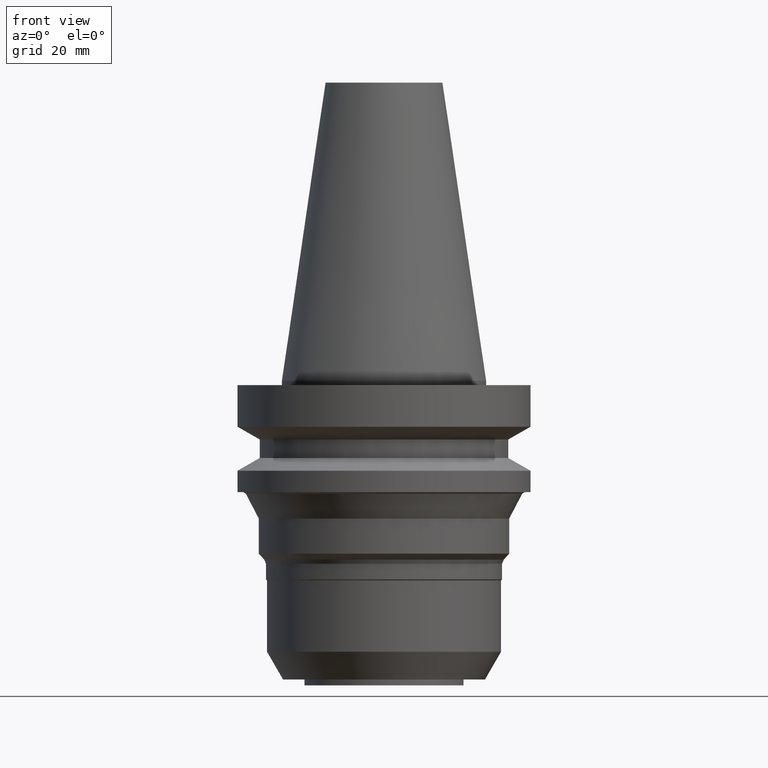
[diagram: clean part render]
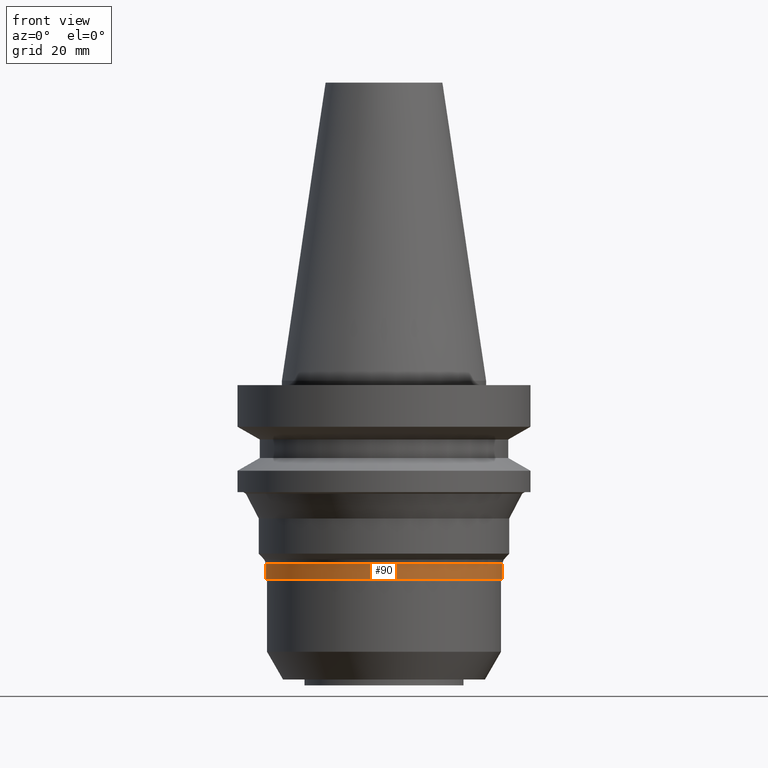
[diagram: same view with one face highlighted and labeled with its STEP entity id]
A machine part, front view. The second image highlights one B-rep face of the part: STEP entity #90.
In plain terms, the highlighted cylindrical surface (bore or boss wall) has radius 40.35 mm, axis along (0, 0, -1).
Its self-contained STEP definition (entity closure, byte-faithful):
#90=ADVANCED_FACE('Unnamed[1]',(#226,#227),#228,.T.);
#127=EDGE_CURVE('Unnamed[1]',#286,#286,#287,.T.);
#158=EDGE_CURVE('Unnamed[1]',#335,#335,#336,.T.);
#226=FACE_BOUND('',#414,.T.);
#227=FACE_BOUND('',#415,.T.);
#228=CYLINDRICAL_SURFACE('',#416,40.3500000000002);
#286=VERTEX_POINT('',#489);
#287=CIRCLE('',#490,40.3500000000003);
#335=VERTEX_POINT('',#551);
#336=CIRCLE('',#552,40.3500000000001);
#414=EDGE_LOOP('',(#625));
#415=EDGE_LOOP('',(#626));
#416=AXIS2_PLACEMENT_3D('',#627,#628,#629);
#489=CARTESIAN_POINT('',(3.82570028970404E-015,40.3500000000003,-62.4784271247455));
#490=AXIS2_PLACEMENT_3D('',#693,#694,#695);
#551=CARTESIAN_POINT('',(4.15155264910952E-015,40.3500000000001,-67.7999999999999));
#552=AXIS2_PLACEMENT_3D('',#747,#748,#749);
#625=ORIENTED_EDGE('',*,*,#158,.F.);
#626=ORIENTED_EDGE('',*,*,#127,.T.);
#627=CARTESIAN_POINT('',(3.98862646940678E-015,7.97725293881356E-015,-65.1392135623727));
#628=DIRECTION('',(6.12323399573677E-017,1.22464679914707E-016,-1.0));
#629=DIRECTION('',(-1.232595164408E-032,1.0,1.22464679914707E-016));
#693=CARTESIAN_POINT('',(3.82570028970404E-015,7.65140057940808E-015,-62.4784271247455));
#694=DIRECTION('',(6.12323399573677E-017,1.22464679914706E-016,-1.0));
#695=DIRECTION('',(-1.232595164408E-032,1.0,1.22464679914706E-016));
#747=CARTESIAN_POINT('',(4.15155264910952E-015,8.30310529821904E-015,-67.7999999999999));
#748=DIRECTION('',(6.12323399573677E-017,1.22464679914707E-016,-1.0));
#749=DIRECTION('',(-1.23259516440801E-032,1.0,1.22464679914707E-016));